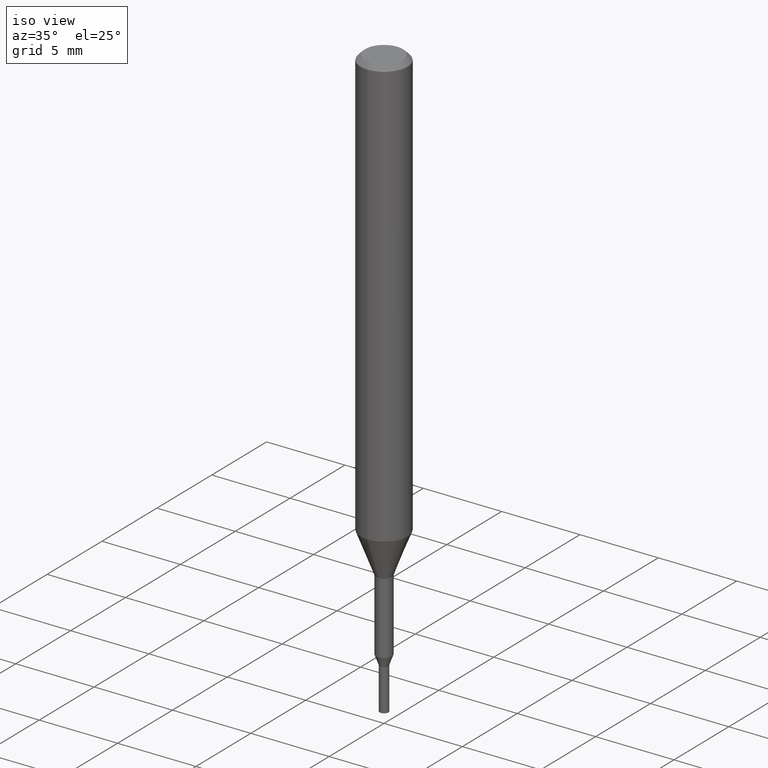
[diagram: clean part render]
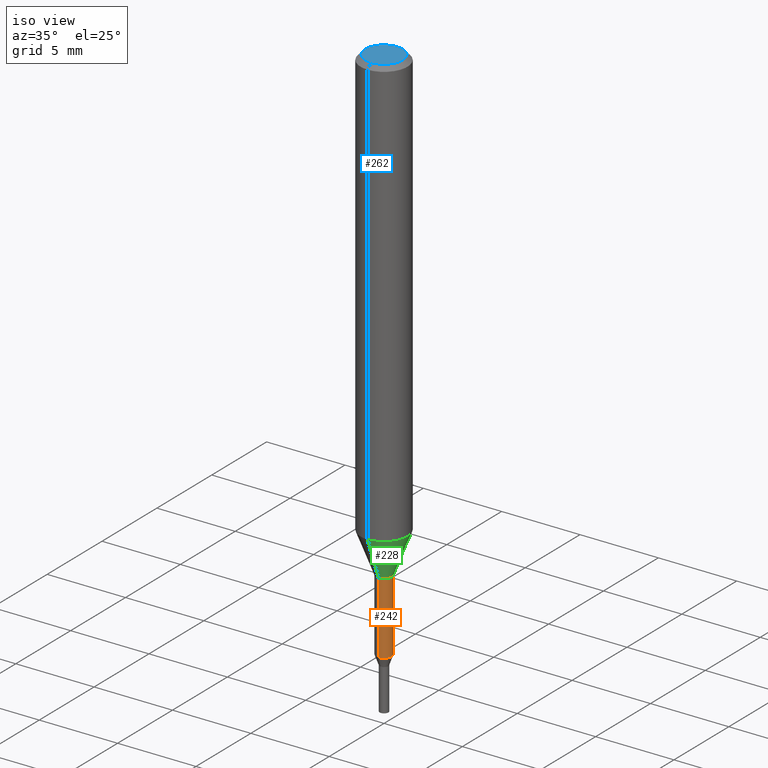
[diagram: same view with three faces highlighted in distinct colors, each labeled with its STEP entity id]
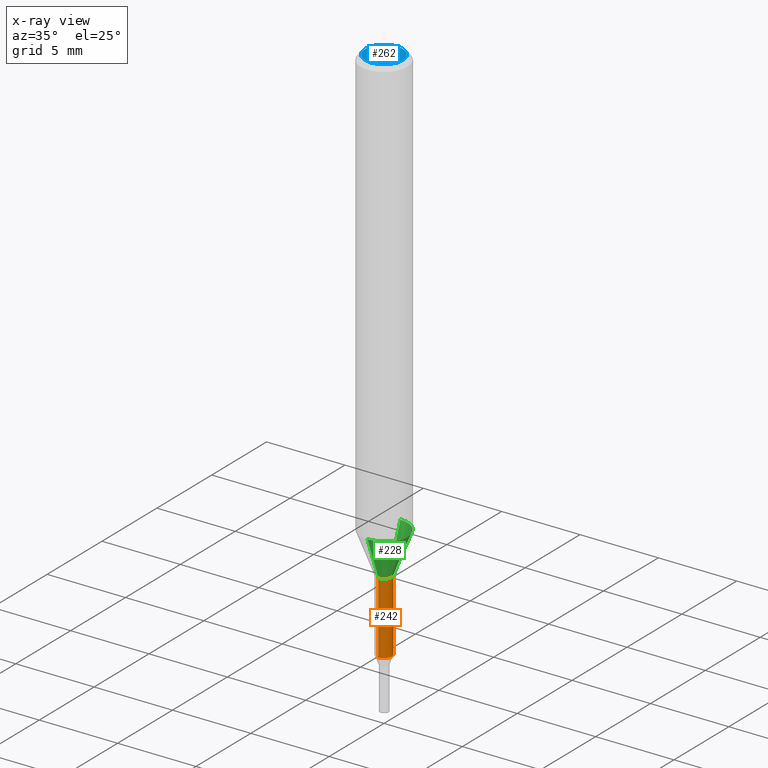
[diagram: x-ray of the same camera — body ghosted, the three highlighted faces saturated]
A machine part, iso view with three faces highlighted in distinct colors.
The next image is the same camera in x-ray (body ghosted, the three faces saturated) — at least one of them is partly hidden behind the body in this view.
Their STEP definitions:

[orange] entity #242 — the highlighted cylindrical surface (edge-blend (fillet) strip) has radius 0.5 mm, axis along (-0, -0, 1).
#178=VERTEX_POINT('',#365);
#182=EDGE_CURVE('',#248,#236,#369,.T.);
#210=EDGE_CURVE('',#222,#178,#400,.T.);
#214=EDGE_CURVE('',#248,#178,#404,.T.);
#222=VERTEX_POINT('',#412);
#236=VERTEX_POINT('',#429);
#242=ADVANCED_FACE('',(#435),#436,.T.);
#248=VERTEX_POINT('',#442);
#264=EDGE_CURVE('',#236,#222,#462,.T.);
#365=CARTESIAN_POINT('',(6.12241946593498E-017,-0.49995,-30.0));
#369=LINE('',#573,#574);
#400=LINE('',#618,#619);
#404=CIRCLE('',#625,0.49995);
#412=CARTESIAN_POINT('',(6.12241946593498E-017,-0.49995,-34.582));
#429=CARTESIAN_POINT('',(0.0,0.49995,-34.582));
#435=FACE_OUTER_BOUND('',#668,.T.);
#436=CYLINDRICAL_SURFACE('',#669,0.49995);
#442=CARTESIAN_POINT('',(0.0,0.49995,-30.0));
#462=CIRCLE('',#700,0.49995);
#573=CARTESIAN_POINT('',(-6.12241946593498E-017,0.49995,-32.291));
#574=VECTOR('',#806,1.0);
#618=CARTESIAN_POINT('',(6.12241946593498E-017,-0.49995,-32.291));
#619=VECTOR('',#852,1.0);
#625=AXIS2_PLACEMENT_3D('',#856,#857,#858);
#668=EDGE_LOOP('',(#898,#899,#900,#901));
#669=AXIS2_PLACEMENT_3D('',#902,#903,#904);
#700=AXIS2_PLACEMENT_3D('',#934,#935,#936);
#806=DIRECTION('',(0.0,0.0,-1.0));
#852=DIRECTION('',(-0.0,-0.0,1.0));
#856=CARTESIAN_POINT('',(0.0,0.0,-30.0));
#857=DIRECTION('',(0.0,0.0,-1.0));
#858=DIRECTION('',(0.0,1.0,0.0));
#898=ORIENTED_EDGE('',*,*,#182,.F.);
#899=ORIENTED_EDGE('',*,*,#214,.T.);
#900=ORIENTED_EDGE('',*,*,#210,.F.);
#901=ORIENTED_EDGE('',*,*,#264,.F.);
#902=CARTESIAN_POINT('',(0.0,0.0,-32.291));
#903=DIRECTION('',(-0.0,-0.0,1.0));
#904=DIRECTION('',(0.0,1.0,0.0));
#934=CARTESIAN_POINT('',(0.0,0.0,-34.582));
#935=DIRECTION('',(0.0,0.0,-1.0));
#936=DIRECTION('',(0.0,1.0,0.0));

[blue] entity #262 — the highlighted planar face has unit normal (-0, 0, 1).
#160=VERTEX_POINT('',#345);
#212=EDGE_CURVE('',#266,#160,#402,.T.);
#246=EDGE_CURVE('',#160,#266,#440,.T.);
#262=ADVANCED_FACE('',(#459),#460,.T.);
#266=VERTEX_POINT('',#464);
#345=CARTESIAN_POINT('',(1.46952762458685E-016,-1.2,0.0));
#402=CIRCLE('',#622,1.2);
#440=CIRCLE('',#675,1.2);
#459=FACE_OUTER_BOUND('',#696,.T.);
#460=PLANE('',#697);
#464=CARTESIAN_POINT('',(0.0,1.2,0.0));
#622=AXIS2_PLACEMENT_3D('',#853,#854,#855);
#675=AXIS2_PLACEMENT_3D('',#908,#909,#910);
#696=EDGE_LOOP('',(#929,#930));
#697=AXIS2_PLACEMENT_3D('',#931,#932,#933);
#853=CARTESIAN_POINT('',(0.0,0.0,0.0));
#854=DIRECTION('',(0.0,0.0,-1.0));
#855=DIRECTION('',(0.0,1.0,0.0));
#908=CARTESIAN_POINT('',(0.0,0.0,0.0));
#909=DIRECTION('',(0.0,0.0,-1.0));
#910=DIRECTION('',(0.0,1.0,0.0));
#929=ORIENTED_EDGE('',*,*,#212,.F.);
#930=ORIENTED_EDGE('',*,*,#246,.F.);
#931=CARTESIAN_POINT('',(0.0,0.6,0.0));
#932=DIRECTION('',(-0.0,0.0,1.0));
#933=DIRECTION('',(0.0,-1.0,0.0));

[green] entity #228 — the highlighted conical surface has half-angle 21.001 deg.
#118=VERTEX_POINT('',#296);
#164=EDGE_CURVE('',#254,#176,#349,.T.);
#166=VERTEX_POINT('',#351);
#176=VERTEX_POINT('',#363);
#228=ADVANCED_FACE('',(#419),#420,.T.);
#240=EDGE_CURVE('',#166,#118,#433,.T.);
#254=VERTEX_POINT('',#449);
#256=EDGE_CURVE('',#254,#166,#451,.T.);
#268=EDGE_CURVE('',#118,#176,#466,.T.);
#296=CARTESIAN_POINT('',(6.12303176911189E-017,-0.5,-30.0));
#349=CIRCLE('',#550,1.5);
#351=CARTESIAN_POINT('',(0.0,0.5,-30.0));
#363=CARTESIAN_POINT('',(1.83690953073357E-016,-1.5,-27.395));
#419=FACE_OUTER_BOUND('',#646,.T.);
#420=CONICAL_SURFACE('',#647,1.0,0.366530581623394);
#433=CIRCLE('',#666,0.5);
#449=CARTESIAN_POINT('',(0.0,1.5,-27.395));
#451=LINE('',#687,#688);
#466=LINE('',#705,#706);
#550=AXIS2_PLACEMENT_3D('',#783,#784,#785);
#646=EDGE_LOOP('',(#874,#875,#876,#877));
#647=AXIS2_PLACEMENT_3D('',#878,#879,#880);
#666=AXIS2_PLACEMENT_3D('',#894,#895,#896);
#687=CARTESIAN_POINT('',(-1.22460635382238E-016,1.0,-28.6975));
#688=VECTOR('',#919,1.0);
#705=CARTESIAN_POINT('',(1.22460635382238E-016,-1.0,-28.6975));
#706=VECTOR('',#937,1.0);
#783=CARTESIAN_POINT('',(0.0,0.0,-27.395));
#784=DIRECTION('',(0.0,0.0,-1.0));
#785=DIRECTION('',(0.0,1.0,0.0));
#874=ORIENTED_EDGE('',*,*,#256,.F.);
#875=ORIENTED_EDGE('',*,*,#164,.T.);
#876=ORIENTED_EDGE('',*,*,#268,.F.);
#877=ORIENTED_EDGE('',*,*,#240,.F.);
#878=CARTESIAN_POINT('',(0.0,0.0,-28.6975));
#879=DIRECTION('',(-0.0,-0.0,1.0));
#880=DIRECTION('',(0.0,1.0,0.0));
#894=CARTESIAN_POINT('',(0.0,0.0,-30.0));
#895=DIRECTION('',(0.0,0.0,-1.0));
#896=DIRECTION('',(0.0,1.0,0.0));
#919=DIRECTION('',(4.38872745501645E-017,-0.35837862847256,-0.933576327171018));
#937=DIRECTION('',(4.38872745501645E-017,-0.35837862847256,0.933576327171018));